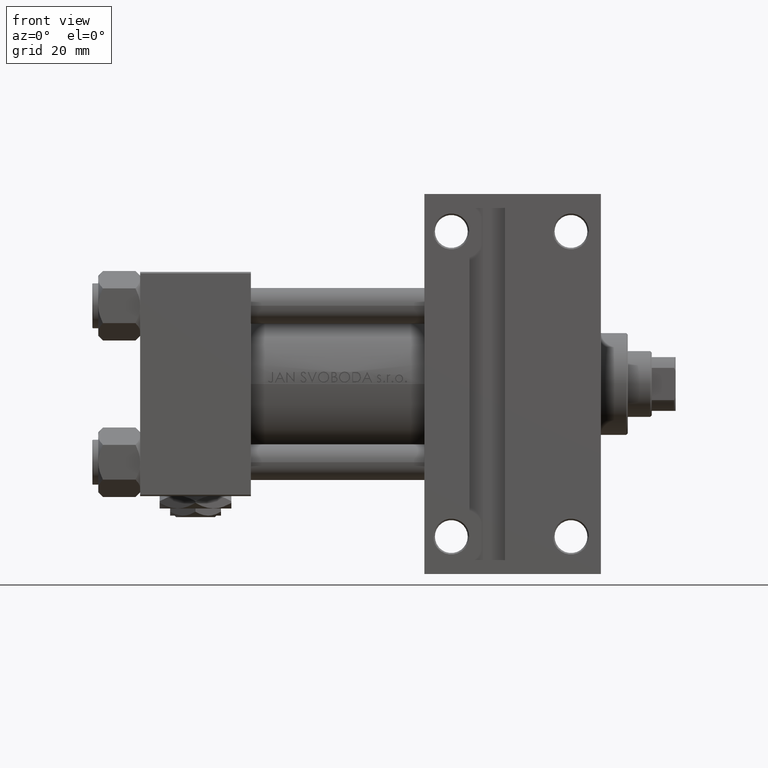
[diagram: clean part render]
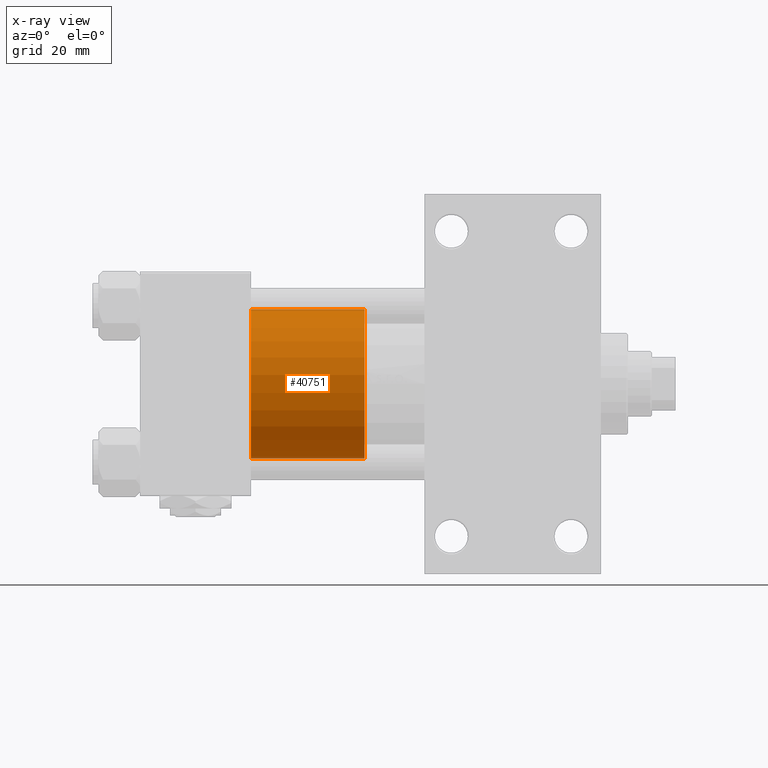
[diagram: x-ray — body ghosted, one internal face saturated and labeled with its STEP entity id]
A machine part, front view, then the same camera in x-ray: the body is ghosted and one INTERNAL B-rep face — a face not visible from any outside direction — is saturated and labeled: STEP entity #40751.
In plain terms, the highlighted cylindrical surface (partial cylindrical patch) has radius 25 mm, axis along (-1, 0, 0).
Its self-contained STEP definition (entity closure, byte-faithful):
#22 = VECTOR ( 'NONE', #26316, 1000.000000000000000 ) ;
#216 = FACE_OUTER_BOUND ( 'NONE', #35650, .T. ) ;
#3813 = DIRECTION ( 'NONE',  ( 1.000000000000000000, 0.000000000000000000, 0.000000000000000000 ) ) ;
#4018 = LINE ( 'NONE', #18861, #18507 ) ;
#4121 = VERTEX_POINT ( 'NONE', #44386 ) ;
#7339 = DIRECTION ( 'NONE',  ( 1.000000000000000000, 0.000000000000000000, 0.000000000000000000 ) ) ;
#7498 = CARTESIAN_POINT ( 'NONE',  ( 0.000000000000000000, 0.000000000000000000, 38.00000000000000000 ) ) ;
#11369 = CARTESIAN_POINT ( 'NONE',  ( 0.000000000000000000, 0.000000000000000000, 0.000000000000000000 ) ) ;
#12578 = ORIENTED_EDGE ( 'NONE', *, *, #18626, .T. ) ;
#15390 = AXIS2_PLACEMENT_3D ( 'NONE', #7498, #19819, #15776 ) ;
#15776 = DIRECTION ( 'NONE',  ( -1.000000000000000000, 0.000000000000000000, 0.000000000000000000 ) ) ;
#18164 = CARTESIAN_POINT ( 'NONE',  ( 0.000000000000000000, 0.000000000000000000, 38.00000000000000000 ) ) ;
#18507 = VECTOR ( 'NONE', #46215, 1000.000000000000000 ) ;
#18626 = EDGE_CURVE ( 'NONE', #18936, #41927, #40636, .T. ) ;
#18861 = CARTESIAN_POINT ( 'NONE',  ( -25.00000000000000000, 0.000000000000000000, 38.00000000000000000 ) ) ;
#18936 = VERTEX_POINT ( 'NONE', #38065 ) ;
#19528 = CARTESIAN_POINT ( 'NONE',  ( -25.00000000000000000, 0.000000000000000000, 0.000000000000000000 ) ) ;
#19819 = DIRECTION ( 'NONE',  ( -0.000000000000000000, -0.000000000000000000, -1.000000000000000000 ) ) ;
#22380 = EDGE_CURVE ( 'NONE', #18936, #4121, #40134, .T. ) ;
#22571 = EDGE_CURVE ( 'NONE', #41927, #24631, #30515, .T. ) ;
#24631 = VERTEX_POINT ( 'NONE', #19528 ) ;
#25374 = ORIENTED_EDGE ( 'NONE', *, *, #38483, .F. ) ;
#25710 = AXIS2_PLACEMENT_3D ( 'NONE', #11369, #46761, #3813 ) ;
#26316 = DIRECTION ( 'NONE',  ( -0.000000000000000000, -0.000000000000000000, -1.000000000000000000 ) ) ;
#26602 = CARTESIAN_POINT ( 'NONE',  ( 25.00000000000000000, 3.061616997868383043E-15, 0.000000000000000000 ) ) ;
#27106 = CYLINDRICAL_SURFACE ( 'NONE', #15390, 25.00000000000000000 ) ;
#30515 = CIRCLE ( 'NONE', #25710, 25.00000000000000000 ) ;
#34893 = ORIENTED_EDGE ( 'NONE', *, *, #22380, .F. ) ;
#35650 = EDGE_LOOP ( 'NONE', ( #34893, #12578, #44390, #25374 ) ) ;
#36872 = CARTESIAN_POINT ( 'NONE',  ( 25.00000000000000000, 3.061616997868383043E-15, 38.00000000000000000 ) ) ;
#38065 = CARTESIAN_POINT ( 'NONE',  ( 25.00000000000000000, 3.061616997868383043E-15, 38.00000000000000000 ) ) ;
#38483 = EDGE_CURVE ( 'NONE', #4121, #24631, #4018, .T. ) ;
#39360 = AXIS2_PLACEMENT_3D ( 'NONE', #18164, #44530, #7339 ) ;
#40134 = CIRCLE ( 'NONE', #39360, 25.00000000000000000 ) ;
#40636 = LINE ( 'NONE', #36872, #22 ) ;
#40751 = ADVANCED_FACE ( 'NONE', ( #216 ), #27106, .T. ) ;
#41927 = VERTEX_POINT ( 'NONE', #26602 ) ;
#44386 = CARTESIAN_POINT ( 'NONE',  ( -25.00000000000000000, 0.000000000000000000, 38.00000000000000000 ) ) ;
#44390 = ORIENTED_EDGE ( 'NONE', *, *, #22571, .T. ) ;
#44530 = DIRECTION ( 'NONE',  ( 0.000000000000000000, 0.000000000000000000, 1.000000000000000000 ) ) ;
#46215 = DIRECTION ( 'NONE',  ( -0.000000000000000000, -0.000000000000000000, -1.000000000000000000 ) ) ;
#46761 = DIRECTION ( 'NONE',  ( 0.000000000000000000, 0.000000000000000000, 1.000000000000000000 ) ) ;